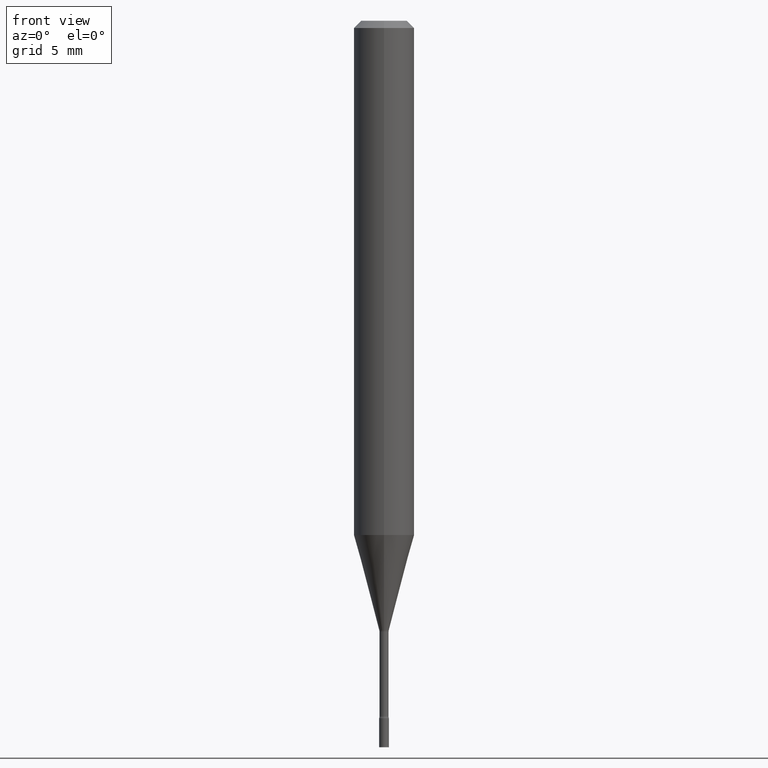
[diagram: clean part render]
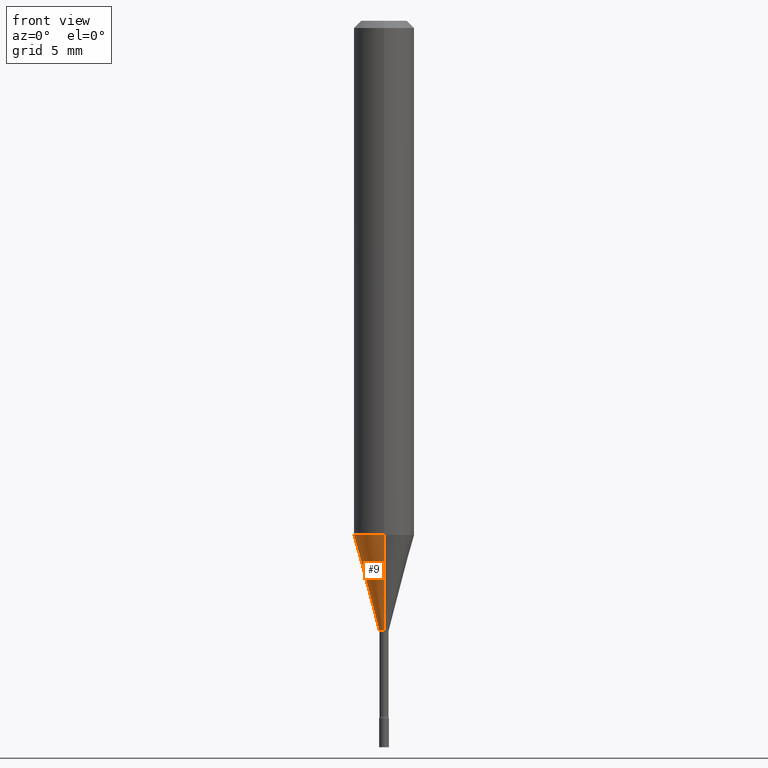
[diagram: same view with one face highlighted and labeled with its STEP entity id]
A machine part, front view. The second image highlights one B-rep face of the part: STEP entity #9.
In plain terms, the highlighted conical surface has half-angle 15 deg.
Its self-contained STEP definition (entity closure, byte-faithful):
#9 = ADVANCED_FACE ( 'NONE', ( #245 ), #219, .T. ) ;
#30 = VERTEX_POINT ( 'NONE', #86 ) ;
#56 = VECTOR ( 'NONE', #283, 39.37007874015748854 ) ;
#58 = EDGE_CURVE ( 'NONE', #405, #443, #266, .T. ) ;
#61 = AXIS2_PLACEMENT_3D ( 'NONE', #408, #406, #418 ) ;
#86 = CARTESIAN_POINT ( 'NONE',  ( 2.572559502513342919E-16, 0.009911112605659593358, -1.258092501787273276 ) ) ;
#89 = DIRECTION ( 'NONE',  ( 1.839019923739596371E-15, 0.2588190451025244032, 0.9659258262890673130 ) ) ;
#109 = CARTESIAN_POINT ( 'NONE',  ( -6.920892941966671205E-17, -0.009911112605668377998, -1.258092501787273276 ) ) ;
#135 = VECTOR ( 'NONE', #89, 39.37007874015748143 ) ;
#141 = EDGE_CURVE ( 'NONE', #30, #405, #469, .T. ) ;
#152 = CARTESIAN_POINT ( 'NONE',  ( -4.364351673553657849E-16, -0.06250000000000371925, -1.061828102118092865 ) ) ;
#219 = CONICAL_SURFACE ( 'NONE', #61, 0.009911112605663985678, 0.2617993877991496854 ) ;
#244 = DIRECTION ( 'NONE',  ( -6.982962677686265922E-15, -1.000000000000000000, 4.370956789862821150E-15 ) ) ;
#245 = FACE_OUTER_BOUND ( 'NONE', #349, .T. ) ;
#258 = VERTEX_POINT ( 'NONE', #436 ) ;
#266 = CIRCLE ( 'NONE', #417, 0.06250000000000000000 ) ;
#280 = LINE ( 'NONE', #109, #56 ) ;
#283 = DIRECTION ( 'NONE',  ( -1.807323732225326195E-15, -0.2588190451025176309, 0.9659258262890690894 ) ) ;
#297 = ORIENTED_EDGE ( 'NONE', *, *, #478, .T. ) ;
#300 = CARTESIAN_POINT ( 'NONE',  ( 2.596534305995666904E-29, -3.707543746804889699E-15, -1.061828102118093087 ) ) ;
#313 = ORIENTED_EDGE ( 'NONE', *, *, #58, .F. ) ;
#319 = DIRECTION ( 'NONE',  ( -2.445343366611038169E-29, 3.491660975452831644E-15, 1.000000000000000000 ) ) ;
#349 = EDGE_LOOP ( 'NONE', ( #481, #297, #360, #313 ) ) ;
#359 = CARTESIAN_POINT ( 'NONE',  ( 3.076468153828594531E-29, -4.392832492000444341E-15, -1.258092501787273276 ) ) ;
#360 = ORIENTED_EDGE ( 'NONE', *, *, #458, .T. ) ;
#398 = CARTESIAN_POINT ( 'NONE',  ( 4.440892098500884514E-16, 0.06249999999999629463, -1.061828102118093309 ) ) ;
#399 = AXIS2_PLACEMENT_3D ( 'NONE', #359, #319, #508 ) ;
#405 = VERTEX_POINT ( 'NONE', #398 ) ;
#406 = DIRECTION ( 'NONE',  ( -2.445343366611038169E-29, 3.491660975452831644E-15, 1.000000000000000000 ) ) ;
#408 = CARTESIAN_POINT ( 'NONE',  ( 3.076468153828594531E-29, -4.392832492000444341E-15, -1.258092501787273276 ) ) ;
#417 = AXIS2_PLACEMENT_3D ( 'NONE', #300, #463, #244 ) ;
#418 = DIRECTION ( 'NONE',  ( -6.982962677686265922E-15, -1.000000000000000000, 0.000000000000000000 ) ) ;
#433 = CARTESIAN_POINT ( 'NONE',  ( 7.042269065257978733E-17, 0.009911112605659593358, -1.258092501787273276 ) ) ;
#436 = CARTESIAN_POINT ( 'NONE',  ( -6.920892941966671205E-17, -0.009911112605668377998, -1.258092501787273276 ) ) ;
#443 = VERTEX_POINT ( 'NONE', #152 ) ;
#447 = CIRCLE ( 'NONE', #399, 0.009911112605663985678 ) ;
#458 = EDGE_CURVE ( 'NONE', #258, #443, #280, .T. ) ;
#463 = DIRECTION ( 'NONE',  ( -2.445343366611038169E-29, 3.491660975452831644E-15, 1.000000000000000000 ) ) ;
#469 = LINE ( 'NONE', #433, #135 ) ;
#478 = EDGE_CURVE ( 'NONE', #30, #258, #447, .T. ) ;
#481 = ORIENTED_EDGE ( 'NONE', *, *, #141, .F. ) ;
#508 = DIRECTION ( 'NONE',  ( -6.982962677686265922E-15, -1.000000000000000000, 0.000000000000000000 ) ) ;